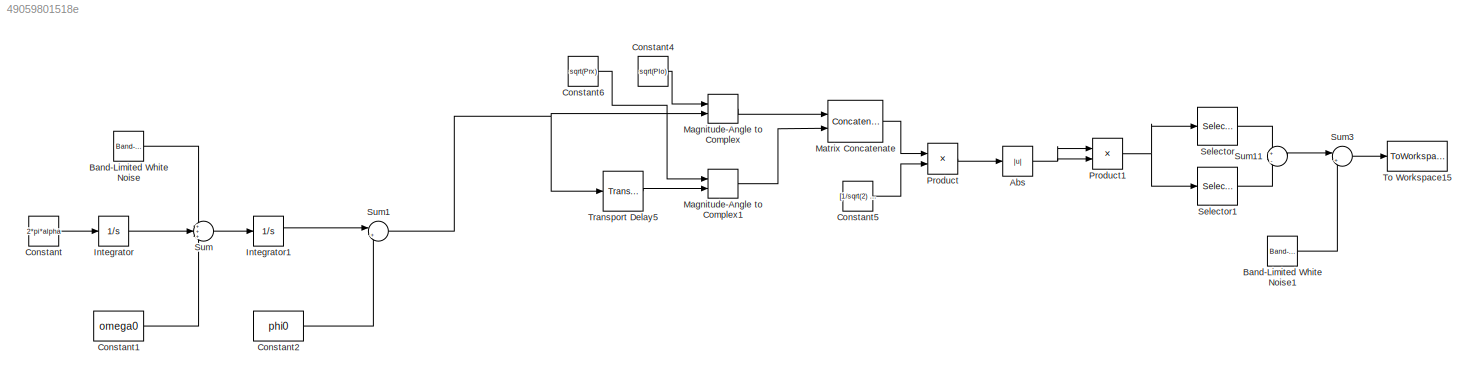
MODEL slx_49059801518e
KIND model
CONFIG AbsTol = auto
CONFIG EnableMultiTasking = off
CONFIG FixedStep = timestep
CONFIG MaxStep = auto
CONFIG MinStep = auto
CONFIG RelTol = 1e-3
CONFIG SampleTimeConstraint = Unconstrained
CONFIG Solver = FixedStepAuto
CONFIG SolverName = FixedStepAuto
CONFIG StartTime = 0.0
CONFIG StopTime = stoptime
BLOCK [Abs] Abs
  SaturateOnIntegerOverflow = off
BLOCK [Reference] Band-Limited White Noise  REF=simulink/Sources/Band-Limited
White Noise
  Ports = [0, 1]
  SourceBlock = simulink/Sources/Band-Limited\nWhite Noise
  SourceProductBaseCode = SL
  SourceProductName = Simulink
  SourceType = Band-Limited White Noise.
BLOCK [Reference] Band-Limited White Noise1  REF=simulink/Sources/Band-Limited
White Noise
  Ports = [0, 1]
  SourceBlock = simulink/Sources/Band-Limited\nWhite Noise
  SourceProductBaseCode = SL
  SourceProductName = Simulink
  SourceType = Band-Limited White Noise.
BLOCK [Constant] Constant
  Value = 2*pi*alpha
BLOCK [Constant] Constant1
  Value = omega0
BLOCK [Constant] Constant2
  Value = phi0
BLOCK [Constant] Constant4
  Value = sqrt(Plo)
BLOCK [Constant] Constant5
  Value = [1/sqrt(2) -1/sqrt(2); 1/sqrt(2) 1/sqrt(2)]
BLOCK [Constant] Constant6
  Value = sqrt(Prx)
BLOCK [Integrator] Integrator
  Ports = [1, 1]
BLOCK [Integrator] Integrator1
  Ports = [1, 1]
BLOCK [MagnitudeAngleToComplex] Magnitude-Angle to Complex
  Ports = [2, 1]
BLOCK [MagnitudeAngleToComplex] Magnitude-Angle to Complex1
  Ports = [2, 1]
BLOCK [Concatenate] Matrix Concatenate
  ConcatenateDimension = 2
  Mode = Multidimensional array
  Ports = [2, 1]
BLOCK [Product] Product
  InputSameDT = off
  Multiplication = Matrix(*)
  OutDataTypeStr = Inherit: Inherit via internal rule
  Ports = [2, 1]
  RndMeth = Floor
  SaturateOnIntegerOverflow = off
BLOCK [Product] Product1
  InputSameDT = off
  OutDataTypeStr = Inherit: Inherit via internal rule
  Ports = [2, 1]
  RndMeth = Floor
  SaturateOnIntegerOverflow = off
BLOCK [Selector] Selector
  IndexOptions = Index vector (dialog)
  Indices = [1]
  InputPortWidth = 2
  OutputSizes = 1
  Ports = [1, 1]
BLOCK [Selector] Selector1
  IndexOptions = Index vector (dialog)
  Indices = [2]
  InputPortWidth = 2
  OutputSizes = 1
  Ports = [1, 1]
BLOCK [Sum] Sum
  IconShape = round
  InputSameDT = off
  Inputs = +++
  OutDataTypeStr = Inherit: Inherit via internal rule
  Ports = [3, 1]
  SaturateOnIntegerOverflow = off
BLOCK [Sum] Sum1
  IconShape = round
  InputSameDT = off
  Inputs = |++
  OutDataTypeStr = Inherit: Inherit via internal rule
  Ports = [2, 1]
  SaturateOnIntegerOverflow = off
BLOCK [Sum] Sum11
  IconShape = round
  InputSameDT = off
  Inputs = +|-
  OutDataTypeStr = Inherit: Inherit via internal rule
  Ports = [2, 1]
  SaturateOnIntegerOverflow = off
BLOCK [Sum] Sum3
  IconShape = round
  InputSameDT = off
  Inputs = |++
  OutDataTypeStr = Inherit: Inherit via internal rule
  Ports = [2, 1]
  SaturateOnIntegerOverflow = off
BLOCK [ToWorkspace] To Workspace15
  FixptAsFi = on
  MaxDataPoints = inf
  Ports = [1]
  SampleTime = -1
  Save2DSignal = 3-D array (concatenate along third dimension)
  SaveFormat = Timeseries
  VariableName = vout15
BLOCK [TransportDelay] Transport Delay5
  BufferSize = buffer
  DelayTime = tau
  Ports = [1, 1]
NET Abs:1 -> Product1:1, Product1:2
LINE Band-Limited White Noise1:1 -> Sum3:2
LINE Band-Limited White Noise:1 -> Sum:1
LINE Constant1:1 -> Sum:3
LINE Constant2:1 -> Sum1:2
LINE Constant4:1 -> Magnitude-Angle to Complex:1
LINE Constant5:1 -> Product:2
LINE Constant6:1 -> Magnitude-Angle to Complex1:1
LINE Constant:1 -> Integrator:1
LINE Integrator1:1 -> Sum1:1
LINE Integrator:1 -> Sum:2
LINE Magnitude-Angle to Complex1:1 -> Matrix Concatenate:2
LINE Magnitude-Angle to Complex:1 -> Matrix Concatenate:1
LINE Matrix Concatenate:1 -> Product:1
NET Product1:1 -> Selector1:1, Selector:1
LINE Product:1 -> Abs:1
LINE Selector1:1 -> Sum11:2
LINE Selector:1 -> Sum11:1
LINE Sum11:1 -> Sum3:1
NET Sum1:1 -> Magnitude-Angle to Complex:2, Transport Delay5:1
LINE Sum3:1 -> To Workspace15:1
LINE Sum:1 -> Integrator1:1
LINE Transport Delay5:1 -> Magnitude-Angle to Complex1:2
note: NET lines group one-source signal fan-out (src -> all destinations, sorted); 1:1 wires keep LINE
